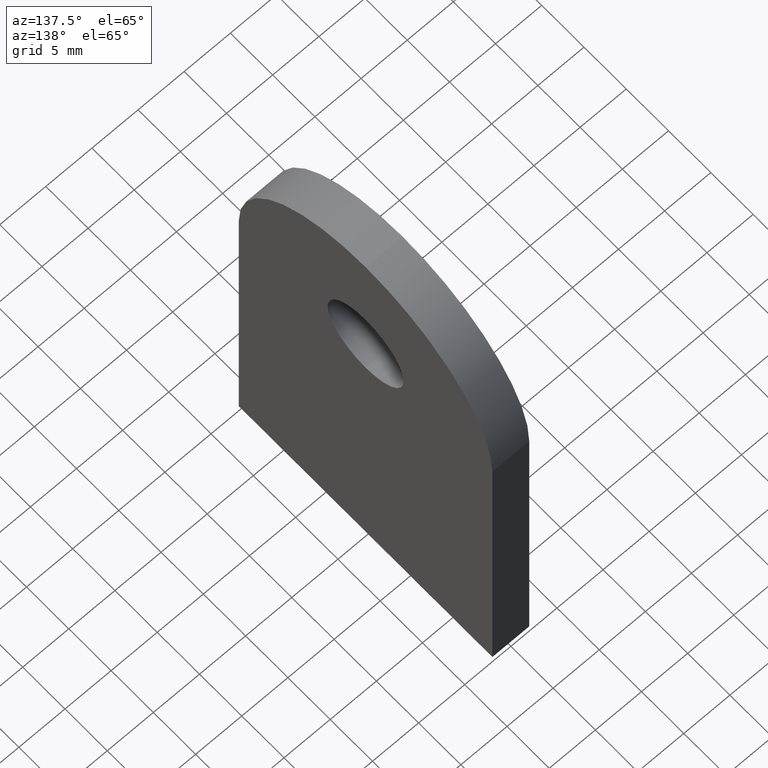
[diagram: clean part render]
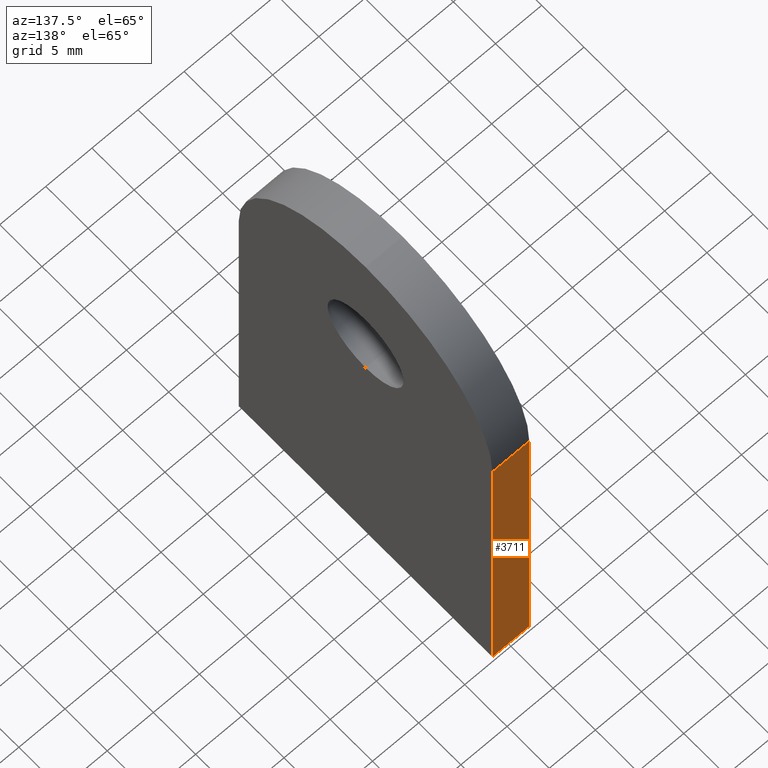
[diagram: same view with one face highlighted and labeled with its STEP entity id]
A machine part, auxiliary view. The second image highlights one B-rep face of the part: STEP entity #3711.
In plain terms, the highlighted planar face has unit normal (-0, 1, 0).
Its self-contained STEP definition (entity closure, byte-faithful):
#185 = LINE ( 'NONE', #9791, #4618 ) ;
#363 = VECTOR ( 'NONE', #3438, 1000.000000000000000 ) ;
#394 = DIRECTION ( 'NONE',  ( 0.0000000000000000000, -4.956352788505163400E-017, 1.000000000000000000 ) ) ;
#748 = VECTOR ( 'NONE', #4698, 1000.000000000000000 ) ;
#1097 = DIRECTION ( 'NONE',  ( 0.0000000000000000000, 4.956352788505163400E-017, -1.000000000000000000 ) ) ;
#1145 = CARTESIAN_POINT ( 'NONE',  ( -2.000000000000000000, 14.99999999999999800, 34.99999999999999300 ) ) ;
#2342 = EDGE_CURVE ( 'NONE', #9341, #9967, #5876, .T. ) ;
#2379 = DIRECTION ( 'NONE',  ( -0.0000000000000000000, 1.000000000000000000, 4.956352788505163400E-017 ) ) ;
#2976 = LINE ( 'NONE', #5760, #748 ) ;
#3200 = VECTOR ( 'NONE', #1097, 1000.000000000000000 ) ;
#3337 = CARTESIAN_POINT ( 'NONE',  ( 2.000000000000000000, 14.99999999999999800, 34.99999999999999300 ) ) ;
#3397 = CARTESIAN_POINT ( 'NONE',  ( 2.000000000000000000, 14.99999999999999800, 34.99999999999999300 ) ) ;
#3438 = DIRECTION ( 'NONE',  ( 0.0000000000000000000, 4.956352788505163400E-017, -1.000000000000000000 ) ) ;
#3711 = ADVANCED_FACE ( 'NONE', ( #11952 ), #12126, .T. ) ;
#3799 = DIRECTION ( 'NONE',  ( -1.000000000000000000, -0.0000000000000000000, -0.0000000000000000000 ) ) ;
#3994 = EDGE_LOOP ( 'NONE', ( #6712, #5376, #6272, #13031 ) ) ;
#4618 = VECTOR ( 'NONE', #3799, 1000.000000000000000 ) ;
#4698 = DIRECTION ( 'NONE',  ( -1.000000000000000000, -0.0000000000000000000, -0.0000000000000000000 ) ) ;
#5194 = EDGE_CURVE ( 'NONE', #7000, #9967, #2976, .T. ) ;
#5376 = ORIENTED_EDGE ( 'NONE', *, *, #12121, .F. ) ;
#5575 = CARTESIAN_POINT ( 'NONE',  ( 2.000000000000000000, 15.00000000000000000, -3.061616997868383000E-015 ) ) ;
#5760 = CARTESIAN_POINT ( 'NONE',  ( 2.000000000000000000, 15.00000000000000000, -3.061616997868383000E-015 ) ) ;
#5779 = VERTEX_POINT ( 'NONE', #3337 ) ;
#5876 = LINE ( 'NONE', #1145, #3200 ) ;
#6272 = ORIENTED_EDGE ( 'NONE', *, *, #10770, .T. ) ;
#6712 = ORIENTED_EDGE ( 'NONE', *, *, #2342, .F. ) ;
#7000 = VERTEX_POINT ( 'NONE', #5575 ) ;
#7423 = CARTESIAN_POINT ( 'NONE',  ( 2.000000000000000000, 14.99999999999999800, 34.99999999999999300 ) ) ;
#7637 = LINE ( 'NONE', #3397, #363 ) ;
#8298 = CARTESIAN_POINT ( 'NONE',  ( -2.000000000000000000, 15.00000000000000000, -3.061616997868383000E-015 ) ) ;
#9341 = VERTEX_POINT ( 'NONE', #9351 ) ;
#9351 = CARTESIAN_POINT ( 'NONE',  ( -2.000000000000000000, 14.99999999999999800, 34.99999999999999300 ) ) ;
#9791 = CARTESIAN_POINT ( 'NONE',  ( 2.000000000000000000, 14.99999999999999800, 34.99999999999999300 ) ) ;
#9967 = VERTEX_POINT ( 'NONE', #8298 ) ;
#10707 = AXIS2_PLACEMENT_3D ( 'NONE', #7423, #2379, #394 ) ;
#10770 = EDGE_CURVE ( 'NONE', #5779, #7000, #7637, .T. ) ;
#11952 = FACE_OUTER_BOUND ( 'NONE', #3994, .T. ) ;
#12121 = EDGE_CURVE ( 'NONE', #5779, #9341, #185, .T. ) ;
#12126 = PLANE ( 'NONE',  #10707 ) ;
#13031 = ORIENTED_EDGE ( 'NONE', *, *, #5194, .T. ) ;